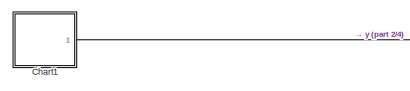
[diagram: root canvas - part 1/4, top left region]
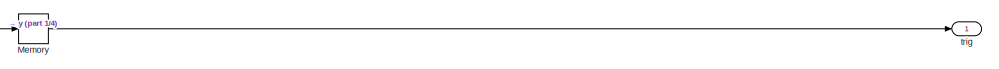
[diagram: root canvas - part 2/4, top center region]
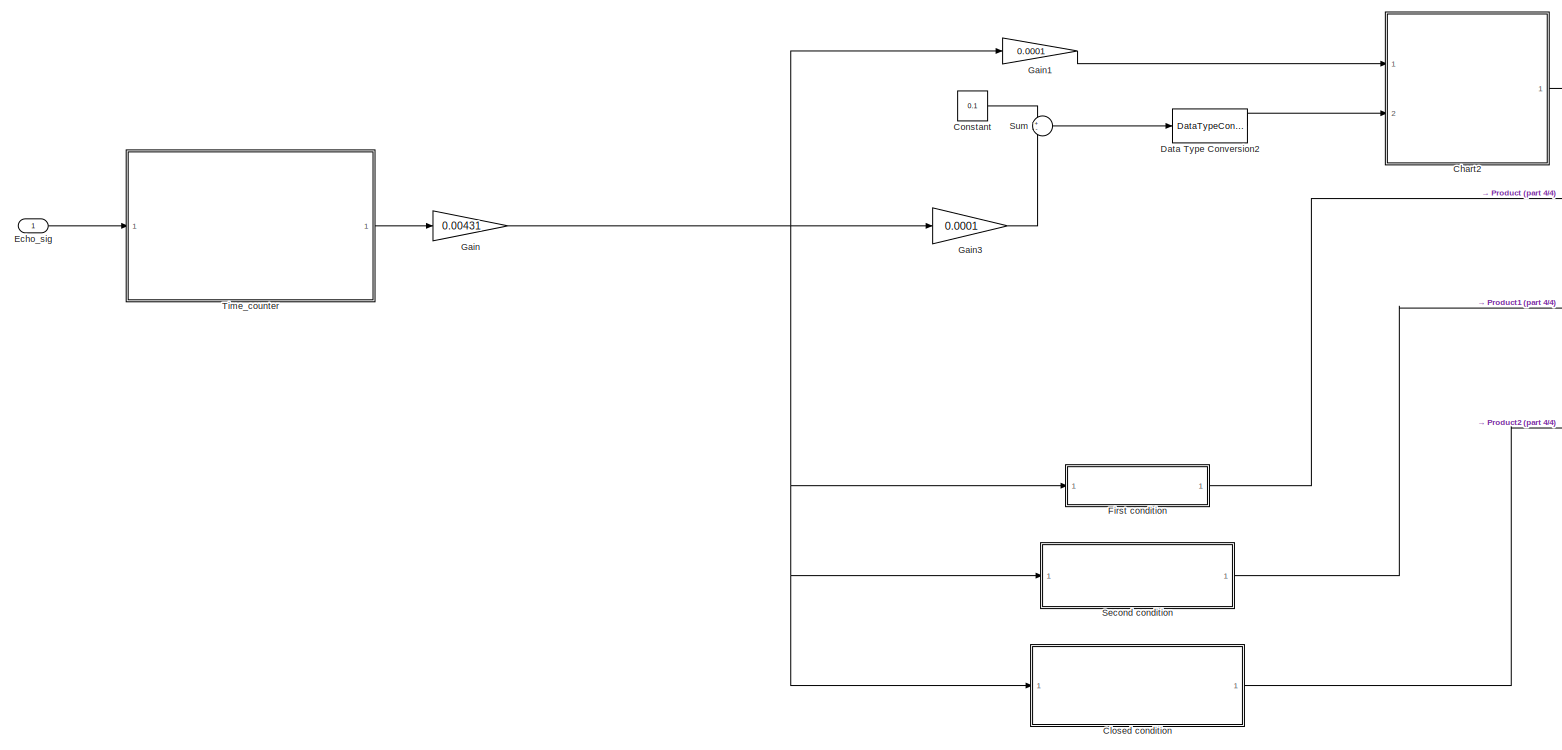
[diagram: root canvas - part 3/4, left side, full height]
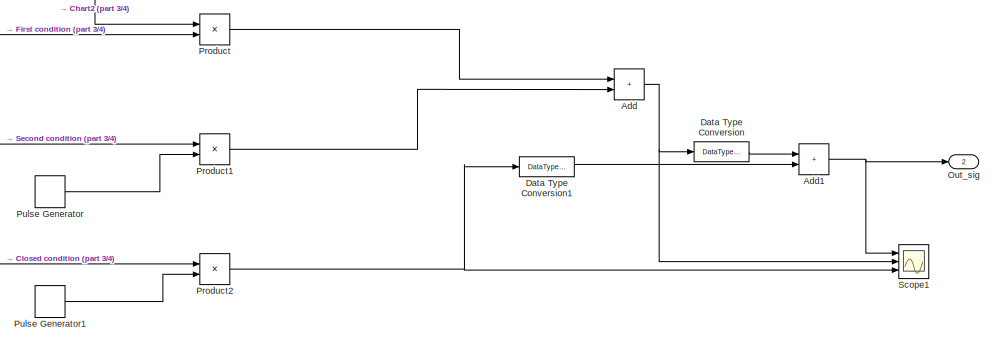
[diagram: root canvas - part 4/4, middle right region]
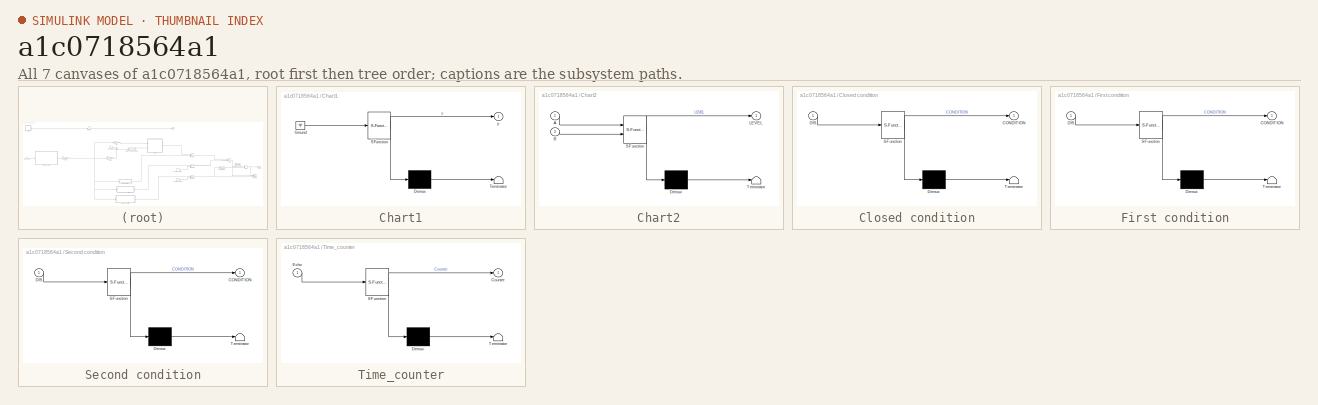
[diagram: thumbnail index - all 7 canvases of the model, root first then tree order]
MODEL slx_a1c0718564a1
KIND model
CONFIG AbsTol = auto
CONFIG EnableMultiTasking = off
CONFIG FixedStep = 1e-06
CONFIG MaxStep = auto
CONFIG MinStep = auto
CONFIG RelTol = 1e-3
CONFIG SampleTimeConstraint = Unconstrained
CONFIG SolverName = FixedStepAuto
CONFIG StartTime = 0.0
CONFIG StopTime = 5
BLOCK [Sum] Add
  IconShape = rectangular
  Ports = [2, 1]
BLOCK [Sum] Add1
  IconShape = rectangular
  Ports = [2, 1]
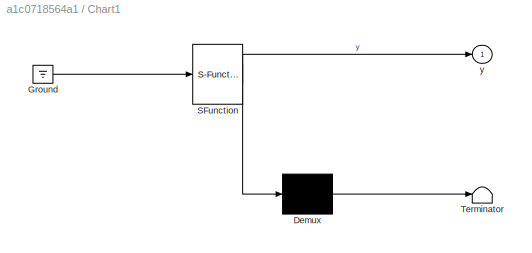
BLOCK [SubSystem] Chart1
  ErrorFcn = Stateflow.Translate.translate
  PermitHierarchicalResolution = ExplicitOnly
  Ports = [0, 1]
  RequestExecContextInheritance = off
  SFBlockType = Chart
  TreatAsAtomicUnit = on
BLOCK [Demux] Chart1/ Demux 
  Outputs = 1
  Ports = [1, 1]
BLOCK [Ground] Chart1/ Ground 
BLOCK [S-Function] Chart1/ SFunction 
  EnableBusSupport = on
  FunctionName = sf_sfun
  PortCounts = [1 2]
  Ports = [1, 2]
  SFcnIsStateOwnerBlock = off
  SFunctionDeploymentMode = off
  Tag = Stateflow S-Function 5
BLOCK [Terminator] Chart1/ Terminator 
BLOCK [Outport] Chart1/y
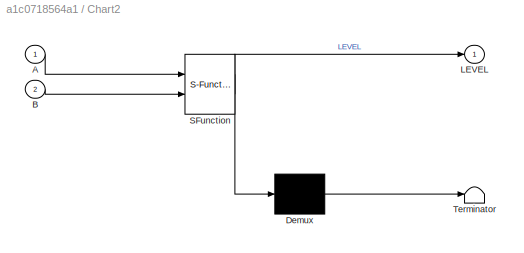
BLOCK [SubSystem] Chart2
  ErrorFcn = Stateflow.Translate.translate
  PermitHierarchicalResolution = ExplicitOnly
  Ports = [2, 1]
  RequestExecContextInheritance = off
  SFBlockType = Chart
  TreatAsAtomicUnit = on
BLOCK [Demux] Chart2/ Demux 
  Outputs = 1
  Ports = [1, 1]
BLOCK [S-Function] Chart2/ SFunction 
  EnableBusSupport = on
  FunctionName = sf_sfun
  PortCounts = [2 2]
  Ports = [2, 2]
  SFcnIsStateOwnerBlock = off
  SFunctionDeploymentMode = off
  Tag = Stateflow S-Function 2
BLOCK [Terminator] Chart2/ Terminator 
BLOCK [Inport] Chart2/A
BLOCK [Inport] Chart2/B
  Port = 2
BLOCK [Outport] Chart2/LEVEL
BLOCK [SubSystem] Closed condition
  ErrorFcn = Stateflow.Translate.translate
  PermitHierarchicalResolution = ExplicitOnly
  Ports = [1, 1]
  RequestExecContextInheritance = off
  SFBlockType = Chart
  TreatAsAtomicUnit = on
BLOCK [Demux] Closed condition/ Demux 
  Outputs = 1
  Ports = [1, 1]
BLOCK [S-Function] Closed condition/ SFunction 
  EnableBusSupport = on
  FunctionName = sf_sfun
  PortCounts = [1 2]
  Ports = [1, 2]
  SFcnIsStateOwnerBlock = off
  SFunctionDeploymentMode = off
  Tag = Stateflow S-Function 6
BLOCK [Terminator] Closed condition/ Terminator 
BLOCK [Outport] Closed condition/CONDITION
BLOCK [Inport] Closed condition/DIS
BLOCK [Constant] Constant
  Value = 0.1
BLOCK [DataTypeConversion] Data Type Conversion
  OutDataTypeStr = single
  RndMeth = Floor
  SaturateOnIntegerOverflow = off
BLOCK [DataTypeConversion] Data Type Conversion1
  OutDataTypeStr = single
  RndMeth = Floor
  SaturateOnIntegerOverflow = off
BLOCK [DataTypeConversion] Data Type Conversion2
  OutDataTypeStr = single
  RndMeth = Floor
  SaturateOnIntegerOverflow = off
BLOCK [Inport] Echo_sig
  OutDataTypeStr = single
  PortDimensions = 1
  SamplingMode = Sample based
  SignalType = real
BLOCK [SubSystem] First condition
  ErrorFcn = Stateflow.Translate.translate
  PermitHierarchicalResolution = ExplicitOnly
  Ports = [1, 1]
  RequestExecContextInheritance = off
  SFBlockType = Chart
  TreatAsAtomicUnit = on
BLOCK [Demux] First condition/ Demux 
  Outputs = 1
  Ports = [1, 1]
BLOCK [S-Function] First condition/ SFunction 
  EnableBusSupport = on
  FunctionName = sf_sfun
  PortCounts = [1 2]
  Ports = [1, 2]
  SFcnIsStateOwnerBlock = off
  SFunctionDeploymentMode = off
  Tag = Stateflow S-Function 1
BLOCK [Terminator] First condition/ Terminator 
BLOCK [Outport] First condition/CONDITION
BLOCK [Inport] First condition/DIS
BLOCK [Gain] Gain
  Gain = 0.00431
BLOCK [Gain] Gain1
  Gain = 0.0001
BLOCK [Gain] Gain3
  Gain = 0.0001
BLOCK [Memory] Memory
  InheritSampleTime = on
  InitialCondition = 1
  LinearizeMemory = on
BLOCK [Outport] Out_sig
  OutDataTypeStr = single
  Port = 2
  PortDimensions = 1
  SampleTime = [9.9999999999999995e-07,0]
  SamplingMode = Sample based
  SignalType = real
BLOCK [Product] Product
  Ports = [2, 1]
BLOCK [Product] Product1
  Ports = [2, 1]
BLOCK [Product] Product2
  Ports = [2, 1]
BLOCK [DiscretePulseGenerator] Pulse Generator
  Period = 0.5
  Ports = [0, 1]
  PulseType = Time based
  PulseWidth = 50
BLOCK [DiscretePulseGenerator] Pulse Generator1
  Period = 1
  Ports = [0, 1]
  PulseType = Time based
  PulseWidth = 50
BLOCK [Scope] Scope1
  Floating = off
  NumInputPorts = 3
  Ports = [3]
  ScopeSpecificationString = Simulink.scopes.TimeScopeBlockCfg('CurrentConfiguration', extmgr.ConfigurationSet(extmgr.Configuration('Core','General UI',true),extmgr.Configuration('Core','Source UI',true),extmgr.Configuration('Sources','WiredSimulink',true,'DataLoggingVariableName','ScopeData1'),extmgr.Configuration('Visuals','Time Domain',true,'SerializedDisplays',{struct('MinYLimReal','-0.125','MaxYLimReal','1.125','YLabelRe...<+2722ch>
BLOCK [SubSystem] Second condition
  ErrorFcn = Stateflow.Translate.translate
  PermitHierarchicalResolution = ExplicitOnly
  Ports = [1, 1]
  RequestExecContextInheritance = off
  SFBlockType = Chart
  TreatAsAtomicUnit = on
BLOCK [Demux] Second condition/ Demux 
  Outputs = 1
  Ports = [1, 1]
BLOCK [S-Function] Second condition/ SFunction 
  EnableBusSupport = on
  FunctionName = sf_sfun
  PortCounts = [1 2]
  Ports = [1, 2]
  SFcnIsStateOwnerBlock = off
  SFunctionDeploymentMode = off
  Tag = Stateflow S-Function 4
BLOCK [Terminator] Second condition/ Terminator 
BLOCK [Outport] Second condition/CONDITION
BLOCK [Inport] Second condition/DIS
BLOCK [Sum] Sum
  Inputs = +-
  Ports = [2, 1]
BLOCK [SubSystem] Time_counter
  ErrorFcn = Stateflow.Translate.translate
  PermitHierarchicalResolution = ExplicitOnly
  Ports = [1, 1]
  RequestExecContextInheritance = off
  SFBlockType = Chart
  TreatAsAtomicUnit = on
BLOCK [Demux] Time_counter/ Demux 
  Outputs = 1
  Ports = [1, 1]
BLOCK [S-Function] Time_counter/ SFunction 
  EnableBusSupport = on
  FunctionName = sf_sfun
  PortCounts = [1 2]
  Ports = [1, 2]
  SFcnIsStateOwnerBlock = off
  SFunctionDeploymentMode = off
  Tag = Stateflow S-Function 7
BLOCK [Terminator] Time_counter/ Terminator 
BLOCK [Outport] Time_counter/Counter
BLOCK [Inport] Time_counter/Echo
BLOCK [Outport] trig
  OutDataTypeStr = single
  PortDimensions = 1
  SampleTime = [9.9999999999999995e-07,0]
  SamplingMode = Sample based
  SignalType = real
NET Add1:1 -> Out_sig:1, Scope1:1
NET Add:1 -> Data Type Conversion:1, Scope1:2
LINE Chart1:1 -> Memory:1
LINE Chart2:1 -> Product:1
LINE Closed condition:1 -> Product2:1
LINE Constant:1 -> Sum:1
LINE Data Type Conversion1:1 -> Add1:2
LINE Data Type Conversion2:1 -> Chart2:2
LINE Data Type Conversion:1 -> Add1:1
LINE Echo_sig:1 -> Time_counter:1
LINE First condition:1 -> Product:2
LINE Gain1:1 -> Chart2:1
LINE Gain3:1 -> Sum:2
NET Gain:1 -> Closed condition:1, First condition:1, Gain1:1, Gain3:1, Second condition:1
LINE Memory:1 -> trig:1
LINE Product1:1 -> Add:2
NET Product2:1 -> Data Type Conversion1:1, Scope1:3
LINE Product:1 -> Add:1
LINE Pulse Generator1:1 -> Product2:2
LINE Pulse Generator:1 -> Product1:2
LINE Second condition:1 -> Product1:1
LINE Sum:1 -> Data Type Conversion2:1
LINE Time_counter:1 -> Gain:1
note: NET lines group one-source signal fan-out (src -> all destinations, sorted); 1:1 wires keep LINE
CHART Test Sequence states=4 transitions=7
  STATE_LABEL 'Initiation\nTimer=0;\nCounter=0;'
  STATE_LABEL 'Stand_by\nTimer=Timer+1;'
  STATE_LABEL 'ON\nCounter=Counter+1;'
  STATE_LABEL 'OFF'
CHART First condition states=3 transitions=3
  STATE_LABEL 'WAIT'
  STATE_LABEL 'STANE_BY\nen:CONDITION=0;'
  STATE_LABEL 'CONFIRM\nen:CONDITION=1;\n'
CHART Chart2 states=3 transitions=4
  STATE_LABEL 'LEVEL_1_ON\n'
  STATE_LABEL 'START\nen:LEVEL=1'
  STATE_LABEL 'OFF\nen:LEVEL=0'
  STATE_LABEL '[after(A,sec)]'
  STATE_LABEL '[after(B,sec)]'
  STATE_LABEL 'START\nen:LEVEL=1'
  STATE_LABEL 'OFF\nen:LEVEL=0'
CHART Second condition states=3 transitions=3
  STATE_LABEL 'WAIT\n'
  STATE_LABEL 'STAND_BY\nen:CONDITION=0;'
  STATE_LABEL 'CINFIRM\nen:CONDITION=1;'
CHART Chart1 states=2 transitions=3
  STATE_LABEL 'Trig_On\nen:y=1'
  STATE_LABEL 'Trig_Off\nen:y=0'
CHART Closed condition states=3 transitions=3
  STATE_LABEL 'SATND_BY'
  STATE_LABEL 'CHECK'
  STATE_LABEL 'CONFIRM\nen:CONDITION=1;'
CHART Time_counter states=4 transitions=5
  STATE_LABEL 'Initiation\nen:Timer=0;\nCounter=0;'
  STATE_LABEL 'Stand_by\nen:Timer=Timer+1;'
  STATE_LABEL 'ON\ndu:Counter=Counter+1;'
  STATE_LABEL 'OFF'
CHART  states=0 transitions=0
CHART  states=0 transitions=0
CHART  states=0 transitions=0
CHART  states=0 transitions=0
CHART  states=0 transitions=0
CHART  states=0 transitions=0
